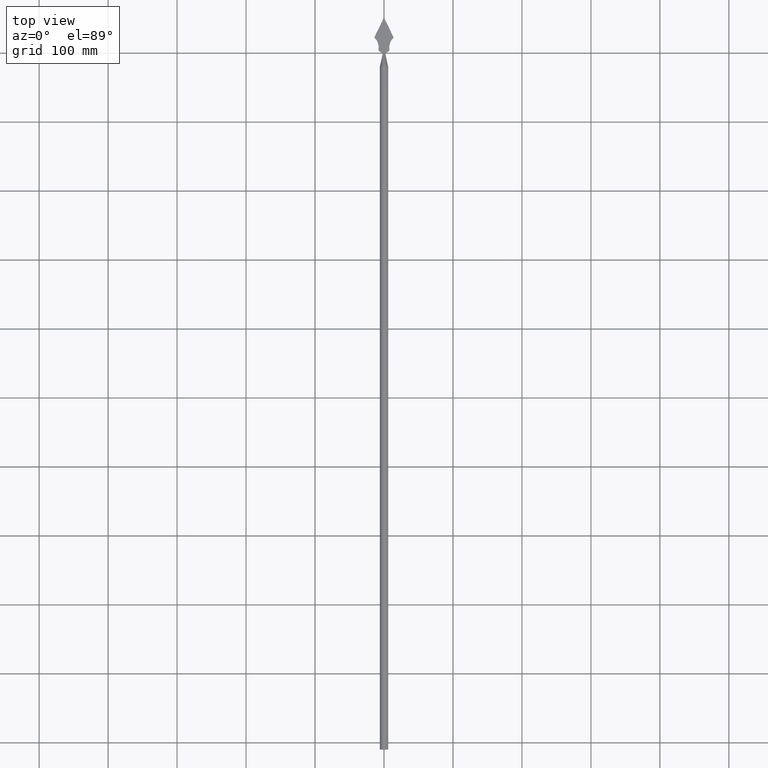
[diagram: clean part render]
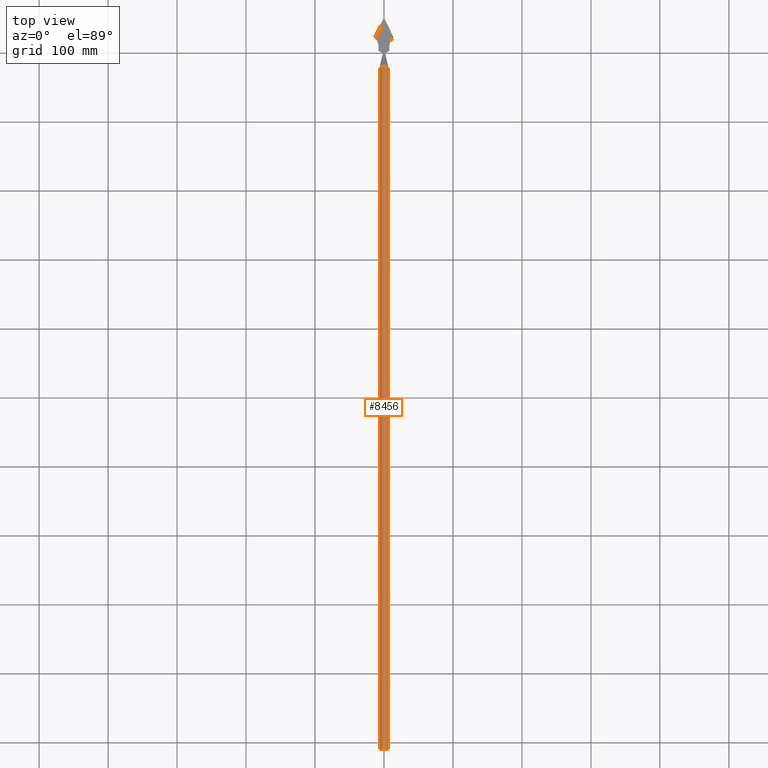
[diagram: same view with one face highlighted and labeled with its STEP entity id]
A machine part, top view. The second image highlights one B-rep face of the part: STEP entity #8456.
In plain terms, the highlighted cylindrical surface (bore or boss wall) has radius 6 mm, axis along (-0, 1, -0).
Its self-contained STEP definition (entity closure, byte-faithful):
#1377 = ORIENTED_EDGE ( 'NONE', *, *, #8358, .T. ) ;
#1621 = ORIENTED_EDGE ( 'NONE', *, *, #9801, .F. ) ;
#1655 = VERTEX_POINT ( 'NONE', #4909 ) ;
#2405 = DIRECTION ( 'NONE',  ( 0.000000000000000000, 0.000000000000000000, 1.000000000000000000 ) ) ;
#2483 = DIRECTION ( 'NONE',  ( -0.000000000000000000, -1.000000000000000000, -0.000000000000000000 ) ) ;
#2986 = CIRCLE ( 'NONE', #5695, 6.000000000000000888 ) ;
#3268 = FACE_OUTER_BOUND ( 'NONE', #3321, .T. ) ;
#3321 = EDGE_LOOP ( 'NONE', ( #1621 ) ) ;
#3585 = DIRECTION ( 'NONE',  ( -0.000000000000000000, 1.000000000000000000, -0.000000000000000000 ) ) ;
#4396 = EDGE_LOOP ( 'NONE', ( #1377 ) ) ;
#4909 = CARTESIAN_POINT ( 'NONE',  ( 0.000000000000000000, -1010.000000000000000, -6.000000000000000888 ) ) ;
#5695 = AXIS2_PLACEMENT_3D ( 'NONE', #5972, #7730, #9527 ) ;
#5880 = FACE_OUTER_BOUND ( 'NONE', #4396, .T. ) ;
#5972 = CARTESIAN_POINT ( 'NONE',  ( 0.000000000000000000, -1010.000000000000000, 0.000000000000000000 ) ) ;
#6981 = AXIS2_PLACEMENT_3D ( 'NONE', #8184, #3585, #10767 ) ;
#7299 = CYLINDRICAL_SURFACE ( 'NONE', #6981, 6.000000000000000888 ) ;
#7730 = DIRECTION ( 'NONE',  ( 0.000000000000000000, -1.000000000000000000, 0.000000000000000000 ) ) ;
#8001 = CARTESIAN_POINT ( 'NONE',  ( 0.000000000000000000, -20.59691475640279634, 0.000000000000000000 ) ) ;
#8184 = CARTESIAN_POINT ( 'NONE',  ( 0.000000000000000000, -1010.000000000000000, 0.000000000000000000 ) ) ;
#8358 = EDGE_CURVE ( 'NONE', #11550, #11550, #11870, .T. ) ;
#8424 = CARTESIAN_POINT ( 'NONE',  ( 0.000000000000000000, -20.59691475640279634, 6.000000000000000888 ) ) ;
#8456 = ADVANCED_FACE ( 'NONE', ( #3268, #5880 ), #7299, .T. ) ;
#9527 = DIRECTION ( 'NONE',  ( 0.000000000000000000, 0.000000000000000000, -1.000000000000000000 ) ) ;
#9801 = EDGE_CURVE ( 'NONE', #1655, #1655, #2986, .T. ) ;
#10490 = AXIS2_PLACEMENT_3D ( 'NONE', #8001, #2483, #2405 ) ;
#10767 = DIRECTION ( 'NONE',  ( 0.000000000000000000, 0.000000000000000000, 1.000000000000000000 ) ) ;
#11550 = VERTEX_POINT ( 'NONE', #8424 ) ;
#11870 = CIRCLE ( 'NONE', #10490, 6.000000000000000888 ) ;